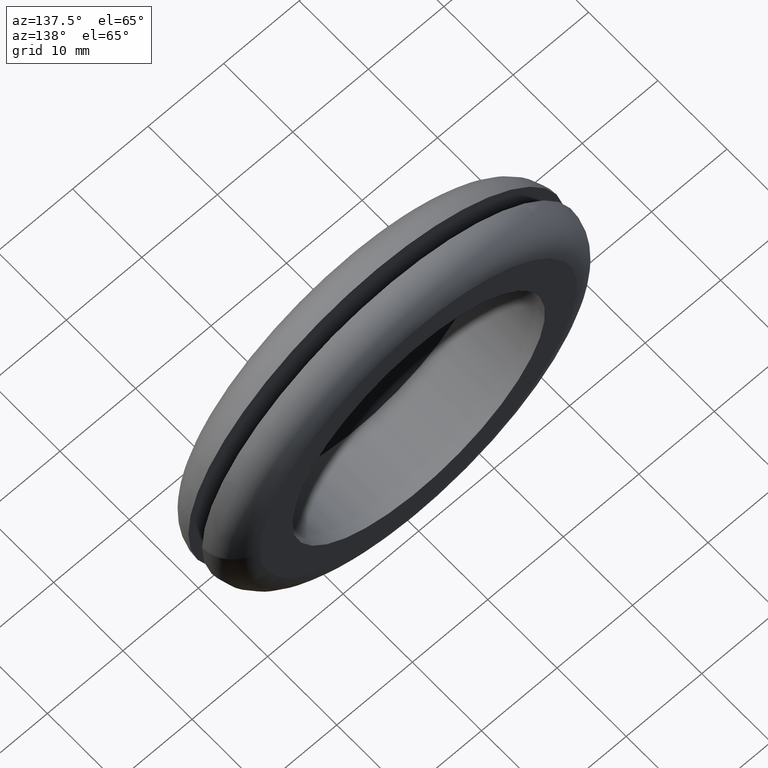
[diagram: clean part render]
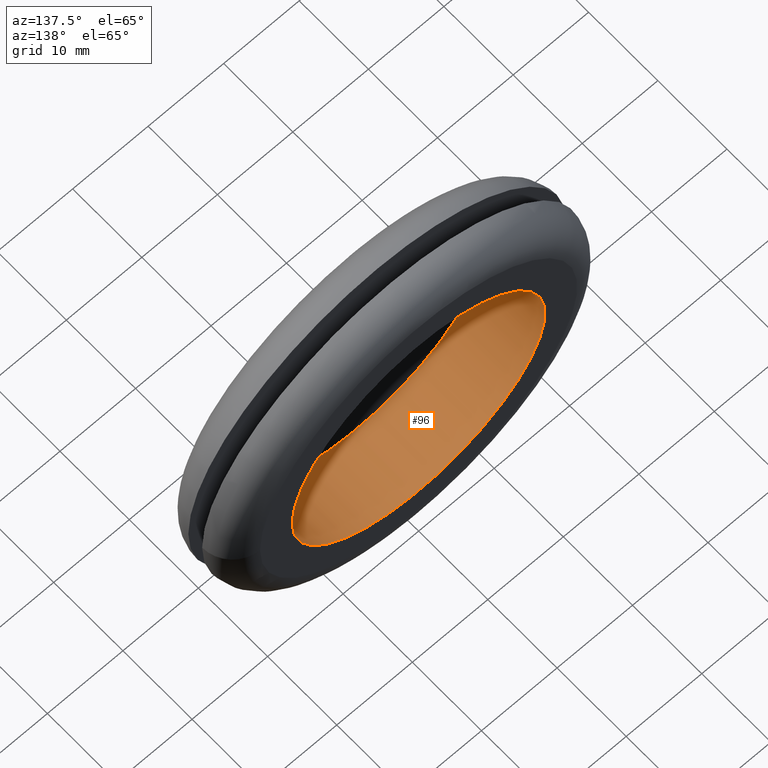
[diagram: same view with one face highlighted and labeled with its STEP entity id]
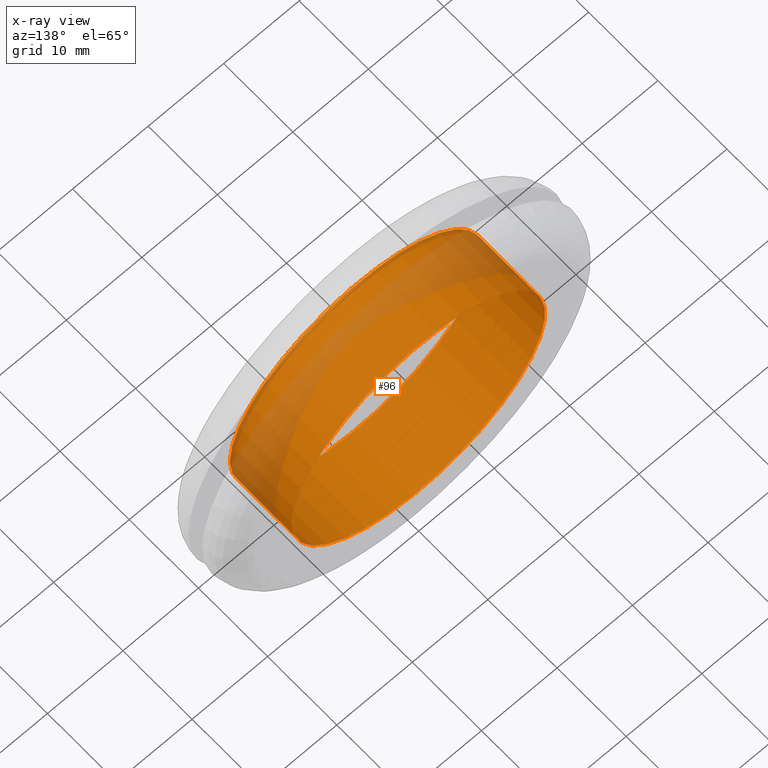
[diagram: x-ray of the same camera — body ghosted, the highlighted face saturated]
A machine part, auxiliary view. The second image highlights one B-rep face of the part: STEP entity #96.
The next image is the same camera in x-ray: the body ghosted, the highlighted face saturated — about 23% of this face is hidden behind the body in this view.
In plain terms, the highlighted cylindrical surface (bore or boss wall) has radius 16.75 mm, axis along (0, -1, 0).
Its self-contained STEP definition (entity closure, byte-faithful):
#22=FACE_BOUND('',#39,.T.);
#29=FACE_OUTER_BOUND('',#38,.T.);
#38=EDGE_LOOP('',(#78));
#39=EDGE_LOOP('',(#79));
#54=CIRCLE('',#108,16.75);
#55=CIRCLE('',#109,16.75);
#62=VERTEX_POINT('',#162);
#63=VERTEX_POINT('',#164);
#70=EDGE_CURVE('',#62,#62,#54,.T.);
#71=EDGE_CURVE('',#63,#63,#55,.T.);
#78=ORIENTED_EDGE('',*,*,#70,.T.);
#79=ORIENTED_EDGE('',*,*,#71,.F.);
#94=CYLINDRICAL_SURFACE('',#107,16.75);
#96=ADVANCED_FACE('',(#29,#22),#94,.F.);
#107=AXIS2_PLACEMENT_3D('',#161,#126,#127);
#108=AXIS2_PLACEMENT_3D('',#163,#128,#129);
#109=AXIS2_PLACEMENT_3D('',#165,#130,#131);
#126=DIRECTION('center_axis',(0.,-1.,0.));
#127=DIRECTION('ref_axis',(1.,0.,0.));
#128=DIRECTION('center_axis',(0.,-1.,0.));
#129=DIRECTION('ref_axis',(1.,0.,0.));
#130=DIRECTION('center_axis',(0.,-1.,0.));
#131=DIRECTION('ref_axis',(1.,0.,0.));
#161=CARTESIAN_POINT('Origin',(0.,10.,0.));
#162=CARTESIAN_POINT('',(16.75,1.,0.));
#163=CARTESIAN_POINT('Origin',(0.,1.,0.));
#164=CARTESIAN_POINT('',(16.75,10.,0.));
#165=CARTESIAN_POINT('Origin',(0.,10.,0.));